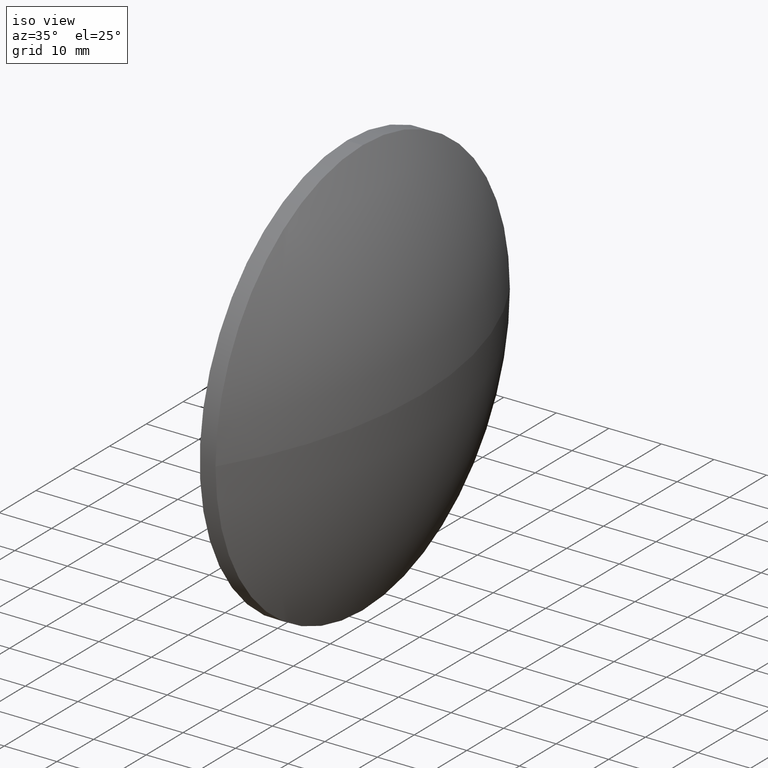
[diagram: clean part render]
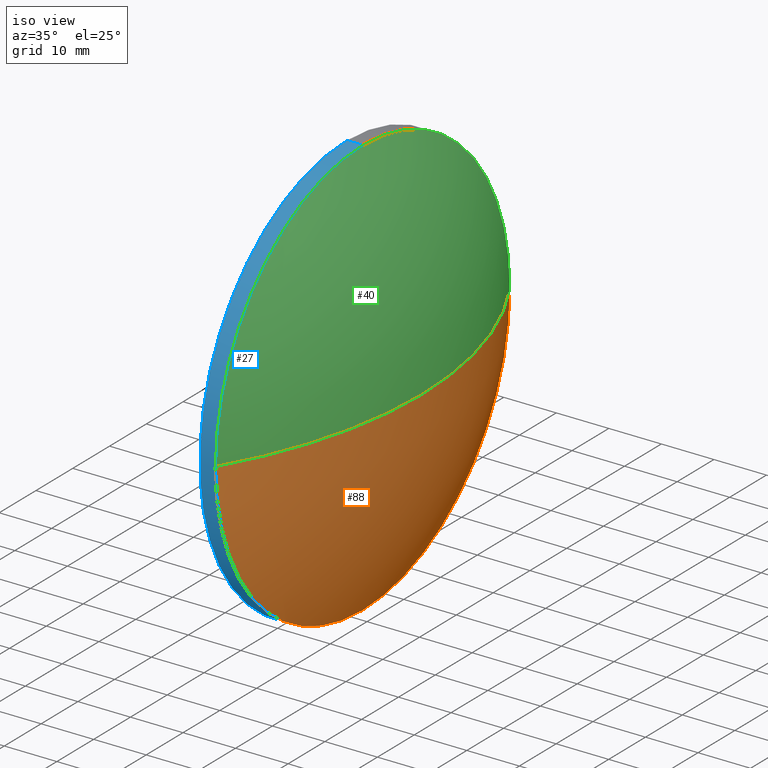
[diagram: same view with three faces highlighted in distinct colors, each labeled with its STEP entity id]
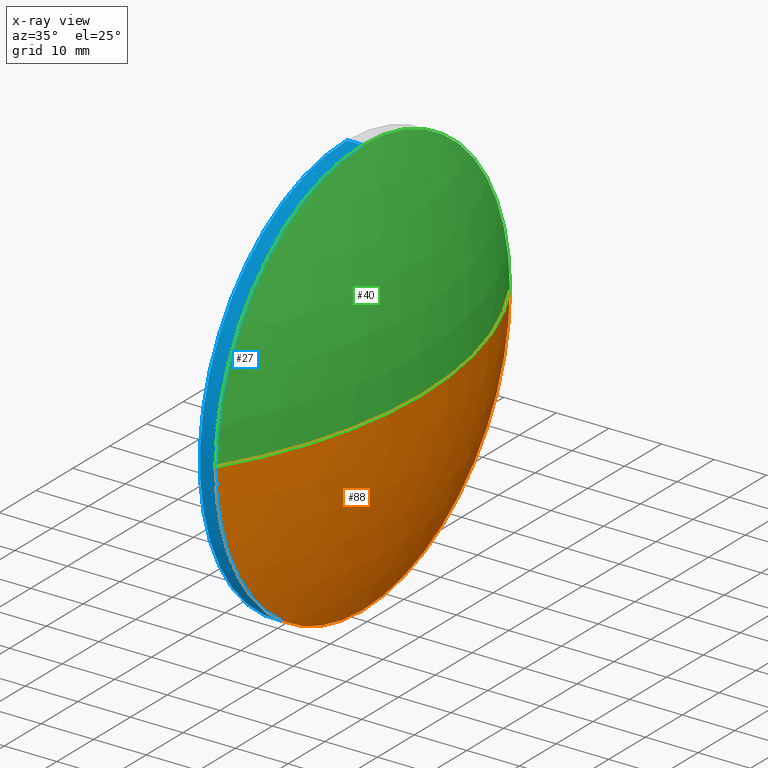
[diagram: x-ray of the same camera — body ghosted, the three highlighted faces saturated]
A machine part, iso view with three faces highlighted in distinct colors.
The next image is the same camera in x-ray (body ghosted, the three faces saturated) — at least one of them is partly hidden behind the body in this view.
Their STEP definitions:

[orange] entity #88 — the highlighted spherical surface has radius 77.5024 mm.
#1 = CARTESIAN_POINT ( 'NONE',  ( 239.1561263384603500, 90.04189075992451300, -4.898587196589411400E-015 ) ) ;
#4 = CARTESIAN_POINT ( 'NONE',  ( 172.7736802952949500, 130.0418907599245100, 0.0000000000000000000 ) ) ;
#18 = CARTESIAN_POINT ( 'NONE',  ( 239.1561263384603500, 130.0418907599245100, 0.0000000000000000000 ) ) ;
#20 = DIRECTION ( 'NONE',  ( -0.0000000000000000000, 0.0000000000000000000, 1.000000000000000000 ) ) ;
#21 = DIRECTION ( 'NONE',  ( -0.0000000000000000000, 0.0000000000000000000, -1.000000000000000000 ) ) ;
#24 = VERTEX_POINT ( 'NONE', #116 ) ;
#26 = AXIS2_PLACEMENT_3D ( 'NONE', #96, #21, #94 ) ;
#28 = CIRCLE ( 'NONE', #155, 77.50244604316542100 ) ;
#32 = EDGE_CURVE ( 'NONE', #128, #120, #69, .T. ) ;
#33 = CARTESIAN_POINT ( 'NONE',  ( 239.1561263384603500, 130.0418907599245100, -40.00000000000000700 ) ) ;
#36 = FACE_OUTER_BOUND ( 'NONE', #178, .T. ) ;
#41 = AXIS2_PLACEMENT_3D ( 'NONE', #49, #176, #149 ) ;
#48 = DIRECTION ( 'NONE',  ( 0.0000000000000000000, 0.0000000000000000000, 1.000000000000000000 ) ) ;
#49 = CARTESIAN_POINT ( 'NONE',  ( 172.7736802952949500, 130.0418907599245100, 0.0000000000000000000 ) ) ;
#52 = EDGE_CURVE ( 'NONE', #24, #120, #109, .T. ) ;
#67 = DIRECTION ( 'NONE',  ( 1.000000000000000000, 0.0000000000000000000, 0.0000000000000000000 ) ) ;
#69 = CIRCLE ( 'NONE', #148, 40.00000000000000700 ) ;
#81 = EDGE_CURVE ( 'NONE', #24, #173, #28, .T. ) ;
#84 = DIRECTION ( 'NONE',  ( 0.0000000000000000000, 0.0000000000000000000, 1.000000000000000000 ) ) ;
#87 = CARTESIAN_POINT ( 'NONE',  ( 239.1561263384603500, 130.0418907599245100, 0.0000000000000000000 ) ) ;
#88 = ADVANCED_FACE ( 'NONE', ( #36 ), #119, .T. ) ;
#89 = ORIENTED_EDGE ( 'NONE', *, *, #32, .F. ) ;
#94 = DIRECTION ( 'NONE',  ( 0.0000000000000000000, 1.000000000000000000, 0.0000000000000000000 ) ) ;
#96 = CARTESIAN_POINT ( 'NONE',  ( 172.7736802952949500, 130.0418907599245100, 0.0000000000000000000 ) ) ;
#98 = AXIS2_PLACEMENT_3D ( 'NONE', #87, #124, #84 ) ;
#106 = ORIENTED_EDGE ( 'NONE', *, *, #81, .F. ) ;
#107 = DIRECTION ( 'NONE',  ( -1.000000000000000000, -0.0000000000000000000, -0.0000000000000000000 ) ) ;
#109 = CIRCLE ( 'NONE', #41, 77.50244604316542100 ) ;
#116 = CARTESIAN_POINT ( 'NONE',  ( 250.2761263384603600, 130.0418907599245100, 0.0000000000000000000 ) ) ;
#119 = SPHERICAL_SURFACE ( 'NONE', #26, 77.50244604316542100 ) ;
#120 = VERTEX_POINT ( 'NONE', #1 ) ;
#123 = CARTESIAN_POINT ( 'NONE',  ( 239.1561263384603500, 170.0418907599244800, 0.0000000000000000000 ) ) ;
#124 = DIRECTION ( 'NONE',  ( -1.000000000000000000, -0.0000000000000000000, -0.0000000000000000000 ) ) ;
#127 = ORIENTED_EDGE ( 'NONE', *, *, #135, .F. ) ;
#128 = VERTEX_POINT ( 'NONE', #33 ) ;
#135 = EDGE_CURVE ( 'NONE', #173, #128, #185, .T. ) ;
#137 = ORIENTED_EDGE ( 'NONE', *, *, #52, .T. ) ;
#148 = AXIS2_PLACEMENT_3D ( 'NONE', #18, #107, #48 ) ;
#149 = DIRECTION ( 'NONE',  ( 0.0000000000000000000, 1.000000000000000000, 1.224646799147353200E-016 ) ) ;
#155 = AXIS2_PLACEMENT_3D ( 'NONE', #4, #20, #67 ) ;
#173 = VERTEX_POINT ( 'NONE', #123 ) ;
#176 = DIRECTION ( 'NONE',  ( 0.0000000000000000000, 1.224646799147353200E-016, -1.000000000000000000 ) ) ;
#178 = EDGE_LOOP ( 'NONE', ( #106, #137, #89, #127 ) ) ;
#185 = CIRCLE ( 'NONE', #98, 40.00000000000000700 ) ;

[blue] entity #27 — the highlighted cylindrical surface (partial cylindrical patch) has radius 40 mm, axis along (-1, -0, -0).
#1 = CARTESIAN_POINT ( 'NONE',  ( 239.1561263384603500, 90.04189075992451300, -4.898587196589411400E-015 ) ) ;
#2 = CIRCLE ( 'NONE', #95, 40.00000000000000700 ) ;
#5 = DIRECTION ( 'NONE',  ( -1.000000000000000000, -0.0000000000000000000, -0.0000000000000000000 ) ) ;
#6 = LINE ( 'NONE', #142, #156 ) ;
#9 = ORIENTED_EDGE ( 'NONE', *, *, #32, .T. ) ;
#16 = VERTEX_POINT ( 'NONE', #92 ) ;
#18 = CARTESIAN_POINT ( 'NONE',  ( 239.1561263384603500, 130.0418907599245100, 0.0000000000000000000 ) ) ;
#27 = ADVANCED_FACE ( 'NONE', ( #57 ), #65, .T. ) ;
#32 = EDGE_CURVE ( 'NONE', #128, #120, #69, .T. ) ;
#33 = CARTESIAN_POINT ( 'NONE',  ( 239.1561263384603500, 130.0418907599245100, -40.00000000000000700 ) ) ;
#34 = AXIS2_PLACEMENT_3D ( 'NONE', #83, #5, #111 ) ;
#45 = EDGE_CURVE ( 'NONE', #167, #16, #2, .T. ) ;
#47 = DIRECTION ( 'NONE',  ( 0.0000000000000000000, 0.0000000000000000000, 1.000000000000000000 ) ) ;
#48 = DIRECTION ( 'NONE',  ( 0.0000000000000000000, 0.0000000000000000000, 1.000000000000000000 ) ) ;
#50 = CARTESIAN_POINT ( 'NONE',  ( 239.1561263384603500, 130.0418907599245100, 40.00000000000000700 ) ) ;
#57 = FACE_OUTER_BOUND ( 'NONE', #93, .T. ) ;
#63 = DIRECTION ( 'NONE',  ( -1.000000000000000000, -0.0000000000000000000, -0.0000000000000000000 ) ) ;
#65 = CYLINDRICAL_SURFACE ( 'NONE', #78, 40.00000000000000700 ) ;
#69 = CIRCLE ( 'NONE', #148, 40.00000000000000700 ) ;
#74 = VECTOR ( 'NONE', #161, 1000.000000000000000 ) ;
#76 = VERTEX_POINT ( 'NONE', #50 ) ;
#78 = AXIS2_PLACEMENT_3D ( 'NONE', #186, #63, #159 ) ;
#83 = CARTESIAN_POINT ( 'NONE',  ( 239.1561263384603500, 130.0418907599245100, 0.0000000000000000000 ) ) ;
#90 = EDGE_CURVE ( 'NONE', #76, #16, #115, .T. ) ;
#92 = CARTESIAN_POINT ( 'NONE',  ( 236.1561263384603500, 130.0418907599245100, 40.00000000000000700 ) ) ;
#93 = EDGE_LOOP ( 'NONE', ( #147, #9, #171, #184, #162 ) ) ;
#95 = AXIS2_PLACEMENT_3D ( 'NONE', #174, #134, #47 ) ;
#107 = DIRECTION ( 'NONE',  ( -1.000000000000000000, -0.0000000000000000000, -0.0000000000000000000 ) ) ;
#111 = DIRECTION ( 'NONE',  ( 0.0000000000000000000, 0.0000000000000000000, 1.000000000000000000 ) ) ;
#112 = DIRECTION ( 'NONE',  ( -1.000000000000000000, -0.0000000000000000000, -0.0000000000000000000 ) ) ;
#115 = LINE ( 'NONE', #175, #74 ) ;
#120 = VERTEX_POINT ( 'NONE', #1 ) ;
#128 = VERTEX_POINT ( 'NONE', #33 ) ;
#130 = EDGE_CURVE ( 'NONE', #120, #76, #160, .T. ) ;
#134 = DIRECTION ( 'NONE',  ( -1.000000000000000000, -0.0000000000000000000, -0.0000000000000000000 ) ) ;
#142 = CARTESIAN_POINT ( 'NONE',  ( 217.3311486608872700, 130.0418907599245100, -40.00000000000000700 ) ) ;
#146 = EDGE_CURVE ( 'NONE', #128, #167, #6, .T. ) ;
#147 = ORIENTED_EDGE ( 'NONE', *, *, #146, .F. ) ;
#148 = AXIS2_PLACEMENT_3D ( 'NONE', #18, #107, #48 ) ;
#156 = VECTOR ( 'NONE', #112, 1000.000000000000000 ) ;
#159 = DIRECTION ( 'NONE',  ( 0.0000000000000000000, 0.0000000000000000000, 1.000000000000000000 ) ) ;
#160 = CIRCLE ( 'NONE', #34, 40.00000000000000700 ) ;
#161 = DIRECTION ( 'NONE',  ( -1.000000000000000000, -0.0000000000000000000, -0.0000000000000000000 ) ) ;
#162 = ORIENTED_EDGE ( 'NONE', *, *, #45, .F. ) ;
#167 = VERTEX_POINT ( 'NONE', #179 ) ;
#171 = ORIENTED_EDGE ( 'NONE', *, *, #130, .T. ) ;
#174 = CARTESIAN_POINT ( 'NONE',  ( 236.1561263384603500, 130.0418907599245100, 0.0000000000000000000 ) ) ;
#175 = CARTESIAN_POINT ( 'NONE',  ( 217.3311486608872700, 130.0418907599245100, 40.00000000000000700 ) ) ;
#179 = CARTESIAN_POINT ( 'NONE',  ( 236.1561263384603500, 130.0418907599245100, -40.00000000000000700 ) ) ;
#184 = ORIENTED_EDGE ( 'NONE', *, *, #90, .T. ) ;
#186 = CARTESIAN_POINT ( 'NONE',  ( 217.3311486608872700, 130.0418907599245100, 0.0000000000000000000 ) ) ;

[green] entity #40 — the highlighted spherical surface has radius 77.5024 mm.
#1 = CARTESIAN_POINT ( 'NONE',  ( 239.1561263384603500, 90.04189075992451300, -4.898587196589411400E-015 ) ) ;
#4 = CARTESIAN_POINT ( 'NONE',  ( 172.7736802952949500, 130.0418907599245100, 0.0000000000000000000 ) ) ;
#5 = DIRECTION ( 'NONE',  ( -1.000000000000000000, -0.0000000000000000000, -0.0000000000000000000 ) ) ;
#20 = DIRECTION ( 'NONE',  ( -0.0000000000000000000, 0.0000000000000000000, 1.000000000000000000 ) ) ;
#24 = VERTEX_POINT ( 'NONE', #116 ) ;
#28 = CIRCLE ( 'NONE', #155, 77.50244604316542100 ) ;
#30 = CARTESIAN_POINT ( 'NONE',  ( 172.7736802952949500, 130.0418907599245100, 0.0000000000000000000 ) ) ;
#34 = AXIS2_PLACEMENT_3D ( 'NONE', #83, #5, #111 ) ;
#40 = ADVANCED_FACE ( 'NONE', ( #101 ), #62, .T. ) ;
#41 = AXIS2_PLACEMENT_3D ( 'NONE', #49, #176, #149 ) ;
#43 = ORIENTED_EDGE ( 'NONE', *, *, #52, .F. ) ;
#49 = CARTESIAN_POINT ( 'NONE',  ( 172.7736802952949500, 130.0418907599245100, 0.0000000000000000000 ) ) ;
#50 = CARTESIAN_POINT ( 'NONE',  ( 239.1561263384603500, 130.0418907599245100, 40.00000000000000700 ) ) ;
#52 = EDGE_CURVE ( 'NONE', #24, #120, #109, .T. ) ;
#54 = DIRECTION ( 'NONE',  ( -1.000000000000000000, -0.0000000000000000000, -0.0000000000000000000 ) ) ;
#60 = ORIENTED_EDGE ( 'NONE', *, *, #130, .F. ) ;
#62 = SPHERICAL_SURFACE ( 'NONE', #182, 77.50244604316542100 ) ;
#66 = AXIS2_PLACEMENT_3D ( 'NONE', #70, #54, #71 ) ;
#67 = DIRECTION ( 'NONE',  ( 1.000000000000000000, 0.0000000000000000000, 0.0000000000000000000 ) ) ;
#70 = CARTESIAN_POINT ( 'NONE',  ( 239.1561263384603500, 130.0418907599245100, 0.0000000000000000000 ) ) ;
#71 = DIRECTION ( 'NONE',  ( 0.0000000000000000000, 0.0000000000000000000, 1.000000000000000000 ) ) ;
#76 = VERTEX_POINT ( 'NONE', #50 ) ;
#81 = EDGE_CURVE ( 'NONE', #24, #173, #28, .T. ) ;
#83 = CARTESIAN_POINT ( 'NONE',  ( 239.1561263384603500, 130.0418907599245100, 0.0000000000000000000 ) ) ;
#101 = FACE_OUTER_BOUND ( 'NONE', #163, .T. ) ;
#104 = ORIENTED_EDGE ( 'NONE', *, *, #81, .T. ) ;
#109 = CIRCLE ( 'NONE', #41, 77.50244604316542100 ) ;
#111 = DIRECTION ( 'NONE',  ( 0.0000000000000000000, 0.0000000000000000000, 1.000000000000000000 ) ) ;
#116 = CARTESIAN_POINT ( 'NONE',  ( 250.2761263384603600, 130.0418907599245100, 0.0000000000000000000 ) ) ;
#120 = VERTEX_POINT ( 'NONE', #1 ) ;
#123 = CARTESIAN_POINT ( 'NONE',  ( 239.1561263384603500, 170.0418907599244800, 0.0000000000000000000 ) ) ;
#130 = EDGE_CURVE ( 'NONE', #120, #76, #160, .T. ) ;
#133 = DIRECTION ( 'NONE',  ( -0.0000000000000000000, 0.0000000000000000000, -1.000000000000000000 ) ) ;
#138 = ORIENTED_EDGE ( 'NONE', *, *, #164, .F. ) ;
#149 = DIRECTION ( 'NONE',  ( 0.0000000000000000000, 1.000000000000000000, 1.224646799147353200E-016 ) ) ;
#155 = AXIS2_PLACEMENT_3D ( 'NONE', #4, #20, #67 ) ;
#158 = DIRECTION ( 'NONE',  ( 0.0000000000000000000, 1.000000000000000000, 0.0000000000000000000 ) ) ;
#160 = CIRCLE ( 'NONE', #34, 40.00000000000000700 ) ;
#163 = EDGE_LOOP ( 'NONE', ( #43, #104, #138, #60 ) ) ;
#164 = EDGE_CURVE ( 'NONE', #76, #173, #177, .T. ) ;
#173 = VERTEX_POINT ( 'NONE', #123 ) ;
#176 = DIRECTION ( 'NONE',  ( 0.0000000000000000000, 1.224646799147353200E-016, -1.000000000000000000 ) ) ;
#177 = CIRCLE ( 'NONE', #66, 40.00000000000000700 ) ;
#182 = AXIS2_PLACEMENT_3D ( 'NONE', #30, #133, #158 ) ;